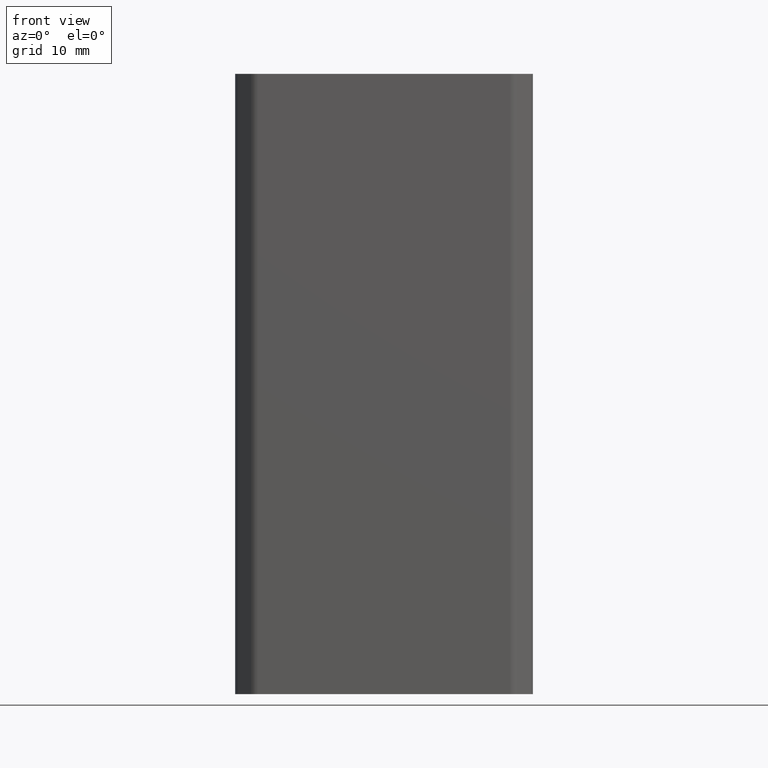
[diagram: clean part render]
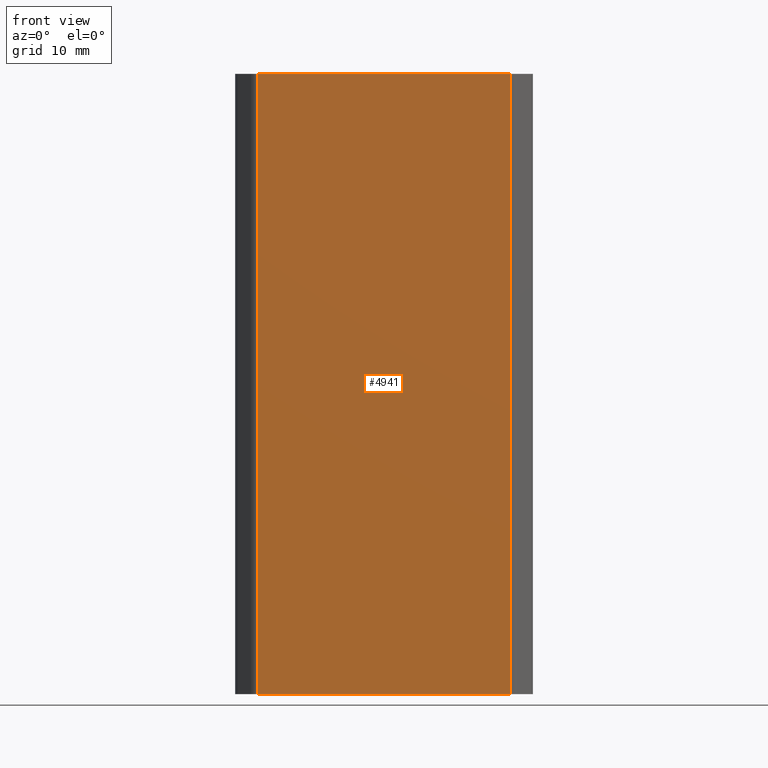
[diagram: same view with one face highlighted and labeled with its STEP entity id]
A machine part, front view. The second image highlights one B-rep face of the part: STEP entity #4941.
In plain terms, the highlighted planar face has unit normal (0, 1, 0).
Its self-contained STEP definition (entity closure, byte-faithful):
#402 = EDGE_LOOP ( 'NONE', ( #3506, #3788, #6683, #3880 ) ) ;
#554 = CARTESIAN_POINT ( 'NONE',  ( 542.1746513957937168, 689.8548242718665051, 100.0000000000000000 ) ) ;
#829 = VECTOR ( 'NONE', #7396, 1000.000000000000000 ) ;
#957 = CARTESIAN_POINT ( 'NONE',  ( 501.4172940734258077, 689.8548242718665051, 0.000000000000000000 ) ) ;
#1280 = VECTOR ( 'NONE', #4622, 1000.000000000000000 ) ;
#1953 = CARTESIAN_POINT ( 'NONE',  ( 501.4172940734258077, 689.8548242718665051, 100.0000000000000000 ) ) ;
#2181 = PLANE ( 'NONE',  #7279 ) ;
#2479 = CARTESIAN_POINT ( 'NONE',  ( 542.1746513957937168, 689.8548242718665051, 0.000000000000000000 ) ) ;
#2668 = LINE ( 'NONE', #554, #829 ) ;
#2687 = DIRECTION ( 'NONE',  ( -0.000000000000000000, -0.000000000000000000, -1.000000000000000000 ) ) ;
#2731 = FACE_OUTER_BOUND ( 'NONE', #402, .T. ) ;
#2816 = DIRECTION ( 'NONE',  ( 0.000000000000000000, 1.000000000000000000, 0.000000000000000000 ) ) ;
#3270 = EDGE_CURVE ( 'NONE', #8499, #8386, #6789, .T. ) ;
#3298 = DIRECTION ( 'NONE',  ( 1.000000000000000000, 0.000000000000000000, 0.000000000000000000 ) ) ;
#3506 = ORIENTED_EDGE ( 'NONE', *, *, #8826, .T. ) ;
#3788 = ORIENTED_EDGE ( 'NONE', *, *, #5515, .F. ) ;
#3880 = ORIENTED_EDGE ( 'NONE', *, *, #4770, .T. ) ;
#3937 = CARTESIAN_POINT ( 'NONE',  ( 501.4172940734258077, 689.8548242718665051, 0.000000000000000000 ) ) ;
#4264 = VERTEX_POINT ( 'NONE', #2479 ) ;
#4343 = CARTESIAN_POINT ( 'NONE',  ( 501.4172940734258077, 689.8548242718665051, 100.0000000000000000 ) ) ;
#4622 = DIRECTION ( 'NONE',  ( 1.000000000000000000, 0.000000000000000000, 0.000000000000000000 ) ) ;
#4636 = VECTOR ( 'NONE', #2687, 1000.000000000000000 ) ;
#4770 = EDGE_CURVE ( 'NONE', #8499, #8359, #8233, .T. ) ;
#4941 = ADVANCED_FACE ( 'NONE', ( #2731 ), #2181, .F. ) ;
#5201 = VECTOR ( 'NONE', #3298, 1000.000000000000000 ) ;
#5515 = EDGE_CURVE ( 'NONE', #8386, #4264, #2668, .T. ) ;
#5540 = CARTESIAN_POINT ( 'NONE',  ( 501.4172940734258077, 689.8548242718665051, 100.0000000000000000 ) ) ;
#5618 = DIRECTION ( 'NONE',  ( 0.000000000000000000, -0.000000000000000000, 1.000000000000000000 ) ) ;
#6587 = LINE ( 'NONE', #3937, #1280 ) ;
#6683 = ORIENTED_EDGE ( 'NONE', *, *, #3270, .F. ) ;
#6789 = LINE ( 'NONE', #6839, #5201 ) ;
#6839 = CARTESIAN_POINT ( 'NONE',  ( 501.4172940734258077, 689.8548242718665051, 100.0000000000000000 ) ) ;
#7279 = AXIS2_PLACEMENT_3D ( 'NONE', #4343, #2816, #5618 ) ;
#7396 = DIRECTION ( 'NONE',  ( -0.000000000000000000, -0.000000000000000000, -1.000000000000000000 ) ) ;
#7478 = CARTESIAN_POINT ( 'NONE',  ( 542.1746513957937168, 689.8548242718665051, 100.0000000000000000 ) ) ;
#8233 = LINE ( 'NONE', #1953, #4636 ) ;
#8359 = VERTEX_POINT ( 'NONE', #957 ) ;
#8386 = VERTEX_POINT ( 'NONE', #7478 ) ;
#8499 = VERTEX_POINT ( 'NONE', #5540 ) ;
#8826 = EDGE_CURVE ( 'NONE', #8359, #4264, #6587, .T. ) ;